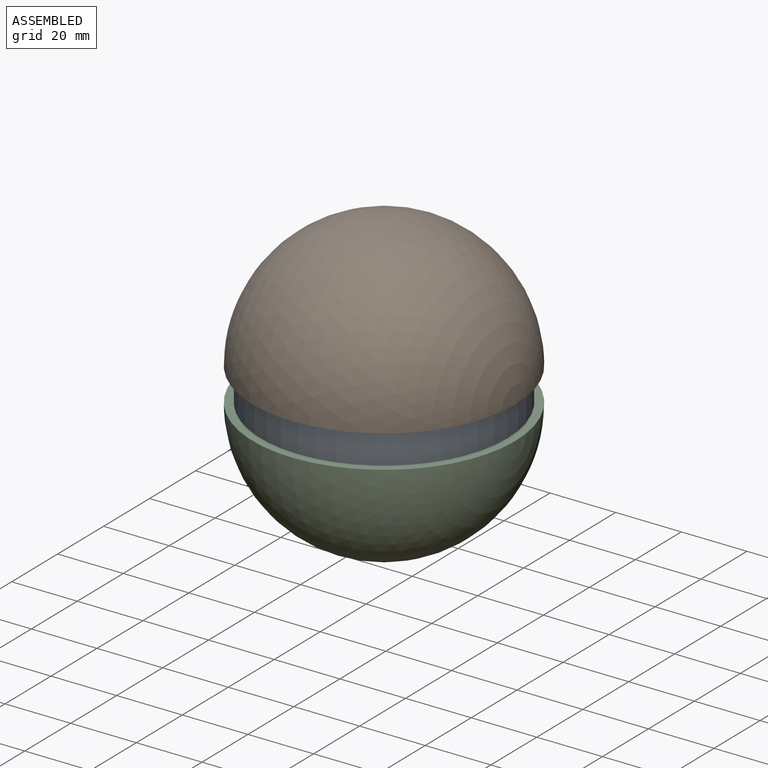
[diagram: assembled view]
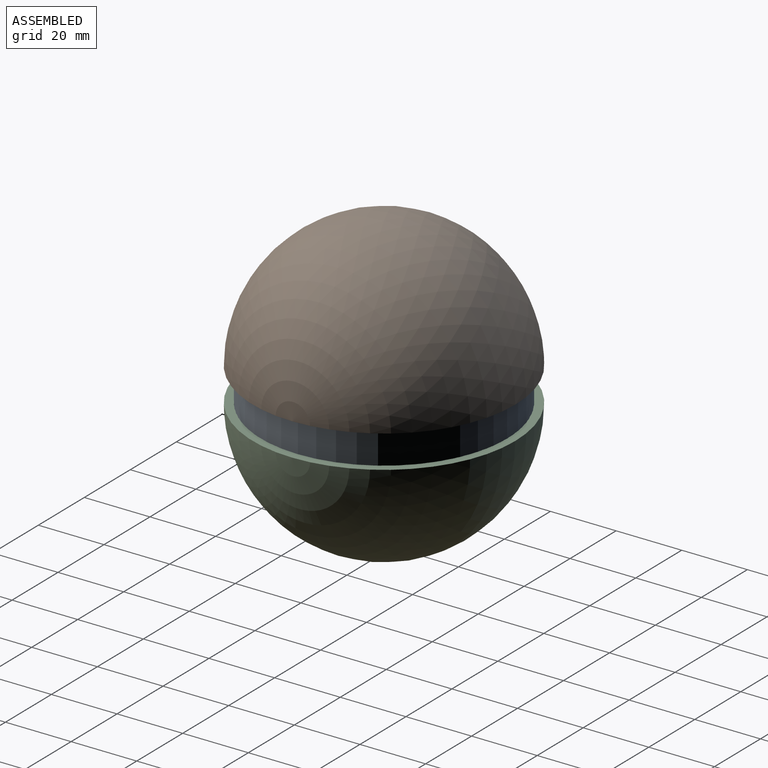
[diagram: assembled view, second angle]
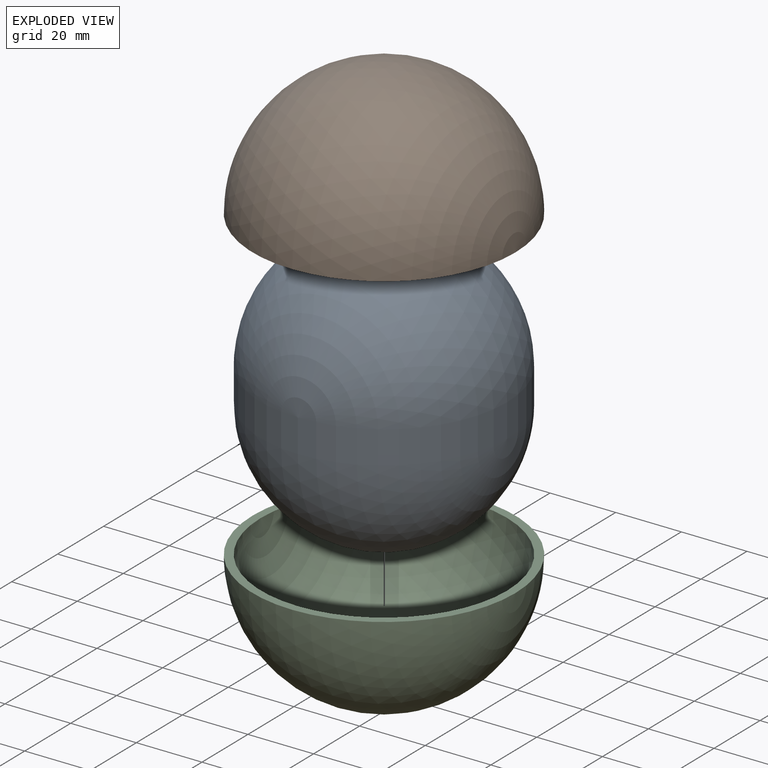
[diagram: exploded view]
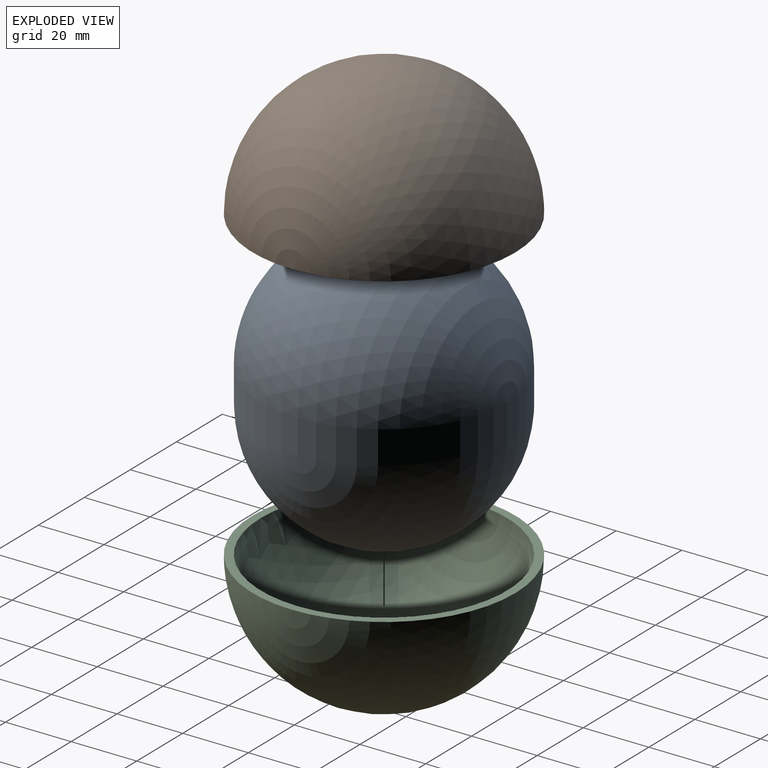
[diagram: exploded view, second angle]
ASSEMBLY  parts=3 mates=2
PART A: 3 faces, bbox 75x75x85 mm
  f0: sphere r=37.5mm, area 8835.7mm2, adj f1
  f1: cylinder r=37.5mm len=75mm, axis (0,0,1), area 2356.2mm2, adj f0,f2
  f2: sphere r=37.5mm, area 8835.7mm2, adj f1
PART B: 3 faces, bbox 40x80x80 mm
  f0: sphere r=40mm, area 10053.1mm2, adj f1
  f1: plane 80x80mm, normal (-1,0,0), area 608.7mm2, adj f0,f2
  f2: sphere r=37.5mm, area 8835.7mm2, adj f1
PART C: same geometry as B
PLACE A t=(-41.26,-27.55,-0.59)mm
PLACE B rot(axis=(0,-1,0),90deg) t=(-41.26,-27.55,-0.59)mm
PLACE C rot(axis=(0,1,0),90deg) t=(-41.26,-27.55,-10.59)mm
MATE fastened B.f1 <-> A.f1  axis (0,0,-1) through (-41.26,-27.55,-0.59)mm
MATE fastened C.f1 <-> A.f1  axis (0,0,1) through (-41.26,-27.55,-10.59)mm
